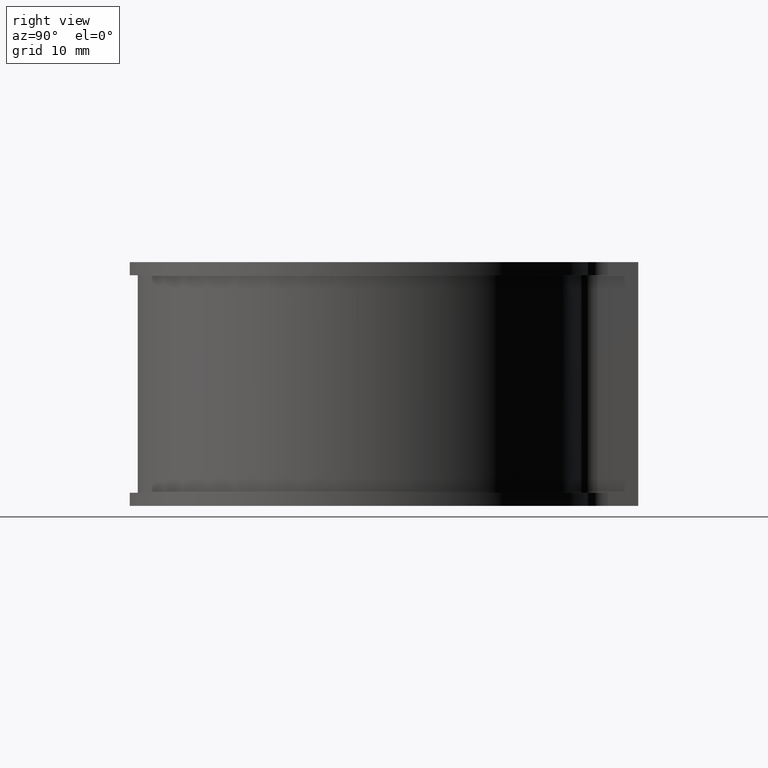
[diagram: clean part render]
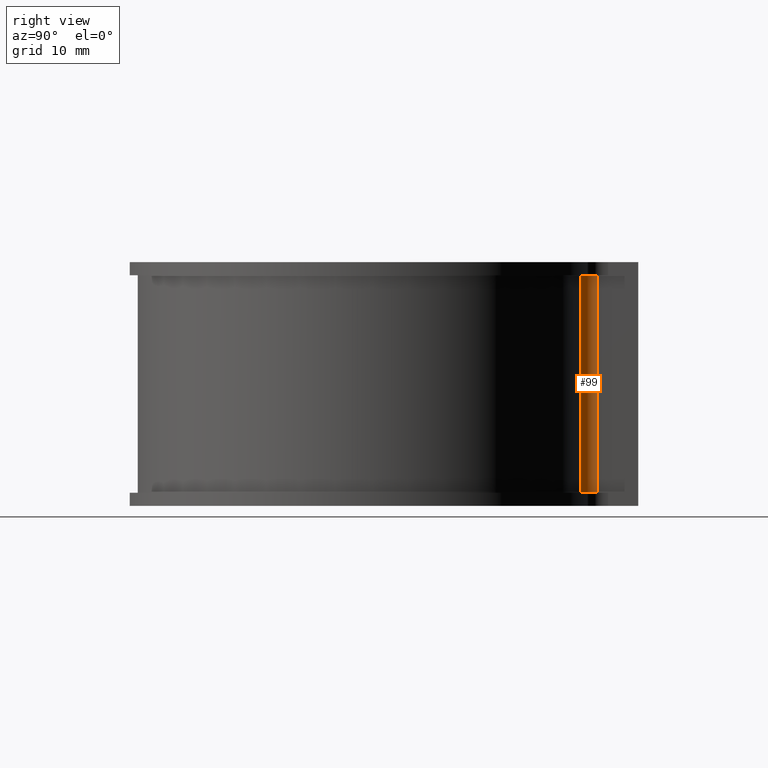
[diagram: same view with one face highlighted and labeled with its STEP entity id]
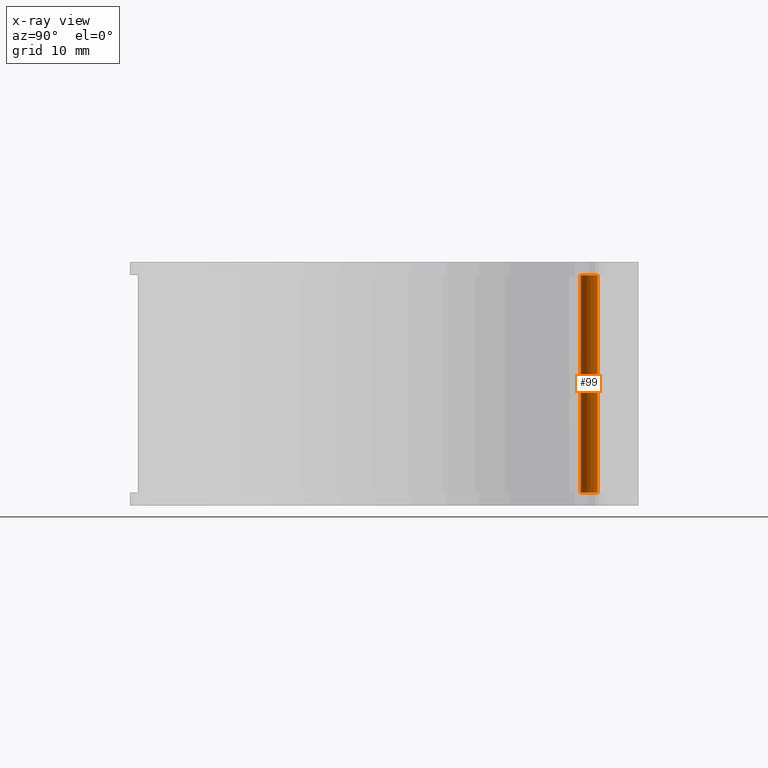
[diagram: x-ray of the same camera — body ghosted, the highlighted face saturated]
A machine part, right view. The second image highlights one B-rep face of the part: STEP entity #99.
The next image is the same camera in x-ray: the body ghosted, the highlighted face saturated — about 0% of this face is hidden behind the body in this view.
In plain terms, the highlighted cylindrical surface (edge-blend (fillet) strip) has radius 2 mm, axis along (0, 0, -1).
Its self-contained STEP definition (entity closure, byte-faithful):
#99 = ADVANCED_FACE( '', ( #150 ), #151, .F. );
#150 = FACE_OUTER_BOUND( '', #202, .T. );
#151 = CYLINDRICAL_SURFACE( '', #203, 2.00000000000000 );
#202 = EDGE_LOOP( '', ( #414, #415, #416, #417 ) );
#203 = AXIS2_PLACEMENT_3D( '', #418, #419, #420 );
#414 = ORIENTED_EDGE( '', *, *, #486, .F. );
#415 = ORIENTED_EDGE( '', *, *, #499, .F. );
#416 = ORIENTED_EDGE( '', *, *, #444, .F. );
#417 = ORIENTED_EDGE( '', *, *, #497, .F. );
#418 = CARTESIAN_POINT( '', ( 6.50000000000001, 27.0294284068310, -25.0000000000000 ) );
#419 = DIRECTION( '', ( 0.000000000000000, 0.000000000000000, -1.00000000000000 ) );
#420 = DIRECTION( '', ( 1.00000000000000, 0.000000000000000, 0.000000000000000 ) );
#444 = EDGE_CURVE( '', #530, #532, #533, .F. );
#486 = EDGE_CURVE( '', #599, #601, #602, .T. );
#497 = EDGE_CURVE( '', #601, #530, #617, .T. );
#499 = EDGE_CURVE( '', #532, #599, #619, .T. );
#530 = VERTEX_POINT( '', #665 );
#532 = VERTEX_POINT( '', #667 );
#533 = CIRCLE( '', #668, 2.00000000000000 );
#599 = VERTEX_POINT( '', #757 );
#601 = VERTEX_POINT( '', #760 );
#602 = CIRCLE( '', #761, 2.00000000000000 );
#617 = LINE( '', #782, #783 );
#619 = LINE( '', #786, #787 );
#665 = CARTESIAN_POINT( '', ( 6.03237410071943, 25.0848652120949, 0.000000000000000 ) );
#667 = CARTESIAN_POINT( '', ( 4.50000000000000, 27.0294284068310, 0.000000000000000 ) );
#668 = AXIS2_PLACEMENT_3D( '', #806, #807, #808 );
#757 = CARTESIAN_POINT( '', ( 4.50000000000000, 27.0294284068310, -25.0000000000000 ) );
#760 = CARTESIAN_POINT( '', ( 6.03237410071943, 25.0848652120949, -25.0000000000000 ) );
#761 = AXIS2_PLACEMENT_3D( '', #884, #885, #886 );
#782 = CARTESIAN_POINT( '', ( 6.03237410071943, 25.0848652120949, -25.0000000000000 ) );
#783 = VECTOR( '', #905, 1000.00000000000 );
#786 = CARTESIAN_POINT( '', ( 4.50000000000000, 27.0294284068310, -25.0000000000000 ) );
#787 = VECTOR( '', #907, 1000.00000000000 );
#806 = CARTESIAN_POINT( '', ( 6.50000000000001, 27.0294284068310, 0.000000000000000 ) );
#807 = DIRECTION( '', ( 0.000000000000000, 0.000000000000000, 1.00000000000000 ) );
#808 = DIRECTION( '', ( 1.00000000000000, 0.000000000000000, 0.000000000000000 ) );
#884 = CARTESIAN_POINT( '', ( 6.50000000000001, 27.0294284068310, -25.0000000000000 ) );
#885 = DIRECTION( '', ( 0.000000000000000, 0.000000000000000, 1.00000000000000 ) );
#886 = DIRECTION( '', ( 1.00000000000000, 0.000000000000000, 0.000000000000000 ) );
#905 = DIRECTION( '', ( 0.000000000000000, 0.000000000000000, 1.00000000000000 ) );
#907 = DIRECTION( '', ( 0.000000000000000, 0.000000000000000, -1.00000000000000 ) );